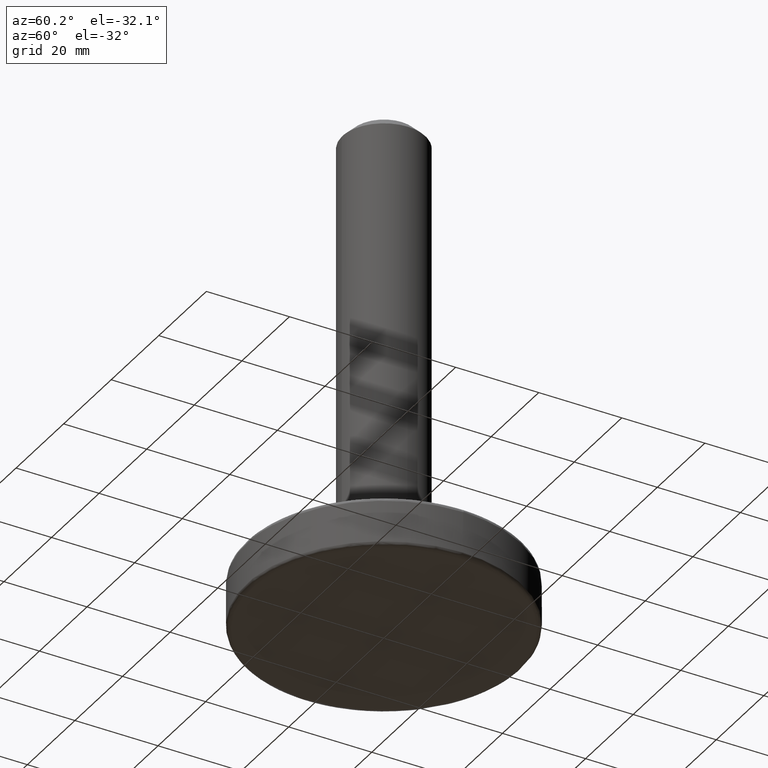
[diagram: clean part render]
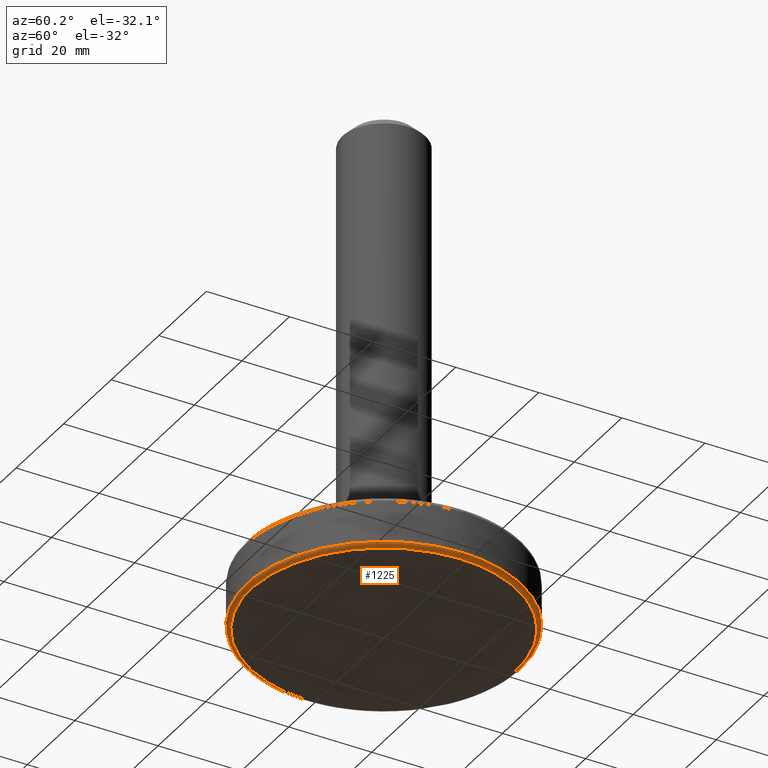
[diagram: same view with one face highlighted and labeled with its STEP entity id]
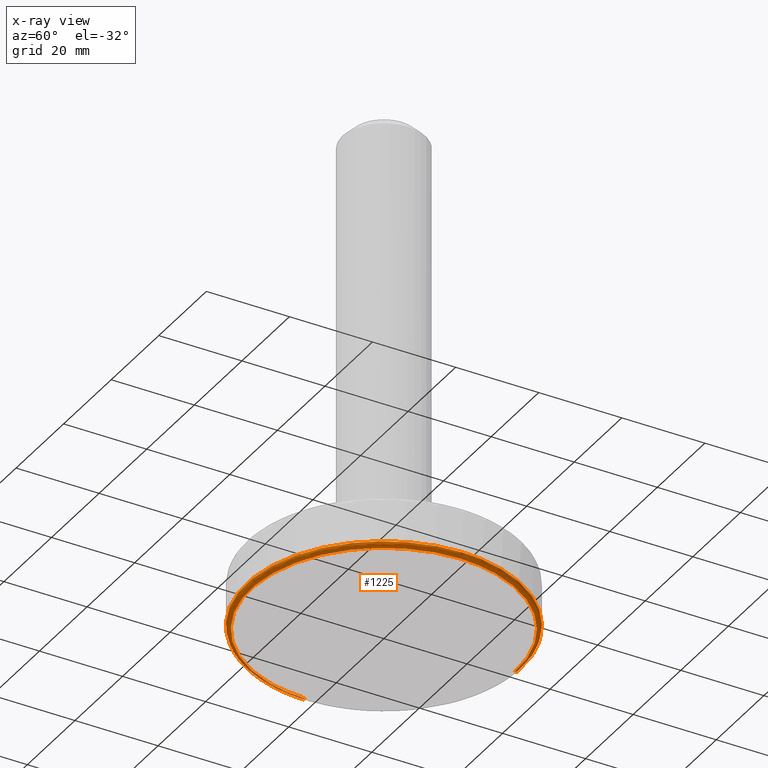
[diagram: x-ray of the same camera — body ghosted, the highlighted face saturated]
A machine part, auxiliary view. The second image highlights one B-rep face of the part: STEP entity #1225.
The next image is the same camera in x-ray: the body ghosted, the highlighted face saturated — about 0% of this face is hidden behind the body in this view.
In plain terms, the highlighted face is a freeform B-spline surface patch.
Its self-contained STEP definition (entity closure, byte-faithful):
#727=CARTESIAN_POINT('',(-22.294475595580401,-24.330153265400490,0.999999999959851));
#728=VERTEX_POINT('',#727);
#729=CARTESIAN_POINT('',(-32.989578246348152,-0.829293149659534,0.999999999851078));
#730=VERTEX_POINT('',#729);
#731=CARTESIAN_POINT('',(-22.294475595580398,-24.330153265400494,0.999999999959851));
#732=CARTESIAN_POINT('',(-32.637051596231174,-14.852929438369641,0.999999999915995));
#733=CARTESIAN_POINT('',(-32.989578246348152,-0.829293149659534,0.999999999851078));
#741=(BOUNDED_CURVE()B_SPLINE_CURVE(2,(#731,#732,#733),.UNSPECIFIED.,.F.,.U.)B_SPLINE_CURVE_WITH_KNOTS((3,3),(0.868415201292648,0.995579891769495),.UNSPECIFIED.)CURVE()GEOMETRIC_REPRESENTATION_ITEM()RATIONAL_B_SPLINE_CURVE((0.853959781799675,0.846111612968519,0.989826157680870))REPRESENTATION_ITEM(''));
#742=EDGE_CURVE('',#728,#730,#741,.T.);
#841=CARTESIAN_POINT('',(33.0,0.0,1.0));
#842=VERTEX_POINT('',#841);
#843=CARTESIAN_POINT('',(33.0,0.0,1.0));
#844=CARTESIAN_POINT('',(33.0,-33.0,1.0));
#845=CARTESIAN_POINT('',(0.0,-33.0,1.0));
#846=CARTESIAN_POINT('',(-12.832997170758027,-32.999999999999986,1.0));
#847=CARTESIAN_POINT('',(-22.294475595580398,-24.330153265400494,0.999999999959851));
#855=(BOUNDED_CURVE()B_SPLINE_CURVE(2,(#843,#844,#845,#846,#847),.UNSPECIFIED.,.F.,.U.)B_SPLINE_CURVE_WITH_KNOTS((3,2,3),(0.500000000000000,0.750000000000000,0.868415201292648),.UNSPECIFIED.)CURVE()GEOMETRIC_REPRESENTATION_ITEM()RATIONAL_B_SPLINE_CURVE((1.0,0.707106781186548,1.0,0.861267962147813,0.853959781799675))REPRESENTATION_ITEM(''));
#856=EDGE_CURVE('',#842,#728,#855,.T.);
#858=CARTESIAN_POINT('',(-0.829293149661811,32.989578246348103,0.999999999851078));
#859=VERTEX_POINT('',#858);
#860=CARTESIAN_POINT('',(-0.829293149661811,32.989578246348096,0.999999999851078));
#861=CARTESIAN_POINT('',(-0.414712060103215,33.0,1.0));
#862=CARTESIAN_POINT('',(0.0,33.0,1.0));
#863=CARTESIAN_POINT('',(33.0,33.0,1.0));
#864=CARTESIAN_POINT('',(33.0,0.0,1.0));
#872=(BOUNDED_CURVE()B_SPLINE_CURVE(2,(#860,#861,#862,#863,#864),.UNSPECIFIED.,.F.,.U.)B_SPLINE_CURVE_WITH_KNOTS((3,2,3),(0.245579891769472,0.250000000000000,0.500000000000000),.UNSPECIFIED.)CURVE()GEOMETRIC_REPRESENTATION_ITEM()RATIONAL_B_SPLINE_CURVE((0.989826157680817,0.994821521091427,1.0,0.707106781186548,1.0))REPRESENTATION_ITEM(''));
#873=EDGE_CURVE('',#859,#842,#872,.T.);
#1129=CARTESIAN_POINT('',(-0.829231990622194,32.987145319127812,1.069724233529758));
#1130=CARTESIAN_POINT('',(32.157913328505614,33.816377309750003,1.069724233529758));
#1131=CARTESIAN_POINT('',(32.987145319127812,0.829231990622196,1.069724233529758));
#1132=CARTESIAN_POINT('',(33.816377309750003,-32.157913328505593,1.069724233529758));
#1133=CARTESIAN_POINT('',(0.829231990622205,-32.987145319127812,1.069724233529758));
#1134=CARTESIAN_POINT('',(-32.157913328505593,-33.816377309750003,1.069724233529758));
#1135=CARTESIAN_POINT('',(-32.987145319127812,-0.829231990622207,1.069724233529758));
#1136=CARTESIAN_POINT('',(-0.831246747609536,33.067293073044453,-0.077336874363705));
#1137=CARTESIAN_POINT('',(32.236046325434899,33.898539820653959,-0.077336874363705));
#1138=CARTESIAN_POINT('',(33.067293073044453,0.831246747609538,-0.077336874363705));
#1139=CARTESIAN_POINT('',(33.898539820653980,-32.236046325434899,-0.077336874363705));
#1140=CARTESIAN_POINT('',(0.831246747609547,-33.067293073044453,-0.077336874363705));
#1141=CARTESIAN_POINT('',(-32.236046325434899,-33.898539820653980,-0.077336874363705));
#1142=CARTESIAN_POINT('',(-33.067293073044453,-0.831246747609549,-0.077336874363705));
#1143=CARTESIAN_POINT('',(-0.802420241908209,31.920564360975771,0.002407720636605));
#1144=CARTESIAN_POINT('',(31.118144119067562,32.722984602883983,0.002407720636605));
#1145=CARTESIAN_POINT('',(31.920564360975771,0.802420241908211,0.002407720636605));
#1146=CARTESIAN_POINT('',(32.722984602883983,-31.118144119067551,0.002407720636605));
#1147=CARTESIAN_POINT('',(0.802420241908220,-31.920564360975771,0.002407720636605));
#1148=CARTESIAN_POINT('',(-31.118144119067551,-32.722984602883990,0.002407720636605));
#1149=CARTESIAN_POINT('',(-31.920564360975771,-0.802420241908222,0.002407720636605));
#1157=(BOUNDED_SURFACE()B_SPLINE_SURFACE(2,2,((#1129,#1136,#1143),(#1130,#1137,#1144),(#1131,#1138,#1145),(#1132,#1139,#1146),(#1133,#1140,#1147),(#1134,#1141,#1148),(#1135,#1142,#1149)),.UNSPECIFIED.,.F.,.F.,.U.)B_SPLINE_SURFACE_WITH_KNOTS((3,2,2,3),(3,3),(0.0,54.672157954006572,109.344315908013100,164.016473862019690),(0.0,1.822371623325183),.UNSPECIFIED.)GEOMETRIC_REPRESENTATION_ITEM()RATIONAL_B_SPLINE_SURFACE(((0.910892961600751,0.599412711385172,0.915967053143571),(0.644098590082988,0.423848792949870,0.647686514621278),(0.910892961600751,0.599412711385172,0.915967053143571),(0.644098590082988,0.423848792949870,0.647686514621278),(0.910892961600751,0.599412711385172,0.915967053143571),(0.644098590082988,0.423848792949870,0.647686514621278),(0.910892961600751,0.599412711385172,0.915967053143571)))REPRESENTATION_ITEM('')SURFACE());
#1158=CARTESIAN_POINT('',(-0.804163054886223,31.989894073866001,4.685749E-016));
#1159=VERTEX_POINT('',#1158);
#1160=CARTESIAN_POINT('',(32.0,0.0,0.0));
#1161=VERTEX_POINT('',#1160);
#1162=CARTESIAN_POINT('',(-0.804163054886223,31.989894073865997,4.685749E-016));
#1163=CARTESIAN_POINT('',(-0.402145028225196,32.0,0.0));
#1164=CARTESIAN_POINT('',(0.0,32.0,0.0));
#1165=CARTESIAN_POINT('',(31.999999999999996,31.999999999999996,0.0));
#1166=CARTESIAN_POINT('',(32.0,0.0,0.0));
#1174=(BOUNDED_CURVE()B_SPLINE_CURVE(2,(#1162,#1163,#1164,#1165,#1166),.UNSPECIFIED.,.F.,.U.)B_SPLINE_CURVE_WITH_KNOTS((3,2,3),(0.245579891766778,0.250000000000000,0.500000000000000),.UNSPECIFIED.)CURVE()GEOMETRIC_REPRESENTATION_ITEM()RATIONAL_B_SPLINE_CURVE((0.989826157674729,0.994821521088271,1.0,0.707106781186548,1.0))REPRESENTATION_ITEM(''));
#1175=EDGE_CURVE('',#1159,#1161,#1174,.T.);
#1176=ORIENTED_EDGE('',*,*,#1175,.F.);
#1177=CARTESIAN_POINT('',(-0.829293149661811,32.989578246348088,0.999999999851078));
#1178=CARTESIAN_POINT('',(-0.829293149622652,32.989578246051138,0.000000033625350));
#1179=CARTESIAN_POINT('',(-0.804163054886223,31.989894073866001,4.685749E-016));
#1187=(BOUNDED_CURVE()B_SPLINE_CURVE(2,(#1177,#1178,#1179),.UNSPECIFIED.,.F.,.U.)B_SPLINE_CURVE_WITH_KNOTS((3,3),(-1.723441281678111,-0.263586913728824),.UNSPECIFIED.)CURVE()GEOMETRIC_REPRESENTATION_ITEM()RATIONAL_B_SPLINE_CURVE((0.883897567030585,0.626638733425258,0.888510396577203))REPRESENTATION_ITEM(''));
#1188=EDGE_CURVE('',#859,#1159,#1187,.T.);
#1189=ORIENTED_EDGE('',*,*,#1188,.F.);
#1190=ORIENTED_EDGE('',*,*,#873,.T.);
#1191=ORIENTED_EDGE('',*,*,#856,.T.);
#1192=ORIENTED_EDGE('',*,*,#742,.T.);
#1193=CARTESIAN_POINT('',(-31.989894073201690,-0.804163054856082,4.373365E-016));
#1194=VERTEX_POINT('',#1193);
#1195=CARTESIAN_POINT('',(-32.989578246348145,-0.829293149659534,0.999999999851078));
#1196=CARTESIAN_POINT('',(-32.989578246051138,-0.829293149622649,0.000000032295635));
#1197=CARTESIAN_POINT('',(-31.989894073201690,-0.804163054856082,4.373365E-016));
#1205=(BOUNDED_CURVE()B_SPLINE_CURVE(2,(#1195,#1196,#1197),.UNSPECIFIED.,.F.,.U.)B_SPLINE_CURVE_WITH_KNOTS((3,3),(-1.723441281678111,-0.263586912352618),.UNSPECIFIED.)CURVE()GEOMETRIC_REPRESENTATION_ITEM()RATIONAL_B_SPLINE_CURVE((0.883897567030585,0.626638733182740,0.888510397070936))REPRESENTATION_ITEM(''));
#1206=EDGE_CURVE('',#730,#1194,#1205,.T.);
#1207=ORIENTED_EDGE('',*,*,#1206,.T.);
#1208=CARTESIAN_POINT('',(32.0,0.0,0.0));
#1209=CARTESIAN_POINT('',(31.999999999999996,-31.999999999999996,0.0));
#1210=CARTESIAN_POINT('',(0.0,-32.0,0.0));
#1211=CARTESIAN_POINT('',(-31.205692037266367,-32.0,0.0));
#1212=CARTESIAN_POINT('',(-31.989894073201693,-0.804163054856082,4.373365E-016));
#1220=(BOUNDED_CURVE()B_SPLINE_CURVE(2,(#1208,#1209,#1210,#1211,#1212),.UNSPECIFIED.,.F.,.U.)B_SPLINE_CURVE_WITH_KNOTS((3,2,3),(0.500000000000000,0.750000000000000,0.995579891766924),.UNSPECIFIED.)CURVE()GEOMETRIC_REPRESENTATION_ITEM()RATIONAL_B_SPLINE_CURVE((1.0,0.707106781186548,1.0,0.712285260098105,0.989826157675059))REPRESENTATION_ITEM(''));
#1221=EDGE_CURVE('',#1161,#1194,#1220,.T.);
#1222=ORIENTED_EDGE('',*,*,#1221,.F.);
#1223=EDGE_LOOP('',(#1176,#1189,#1190,#1191,#1192,#1207,#1222));
#1224=FACE_OUTER_BOUND('',#1223,.T.);
#1225=ADVANCED_FACE('',(#1224),#1157,.T.);